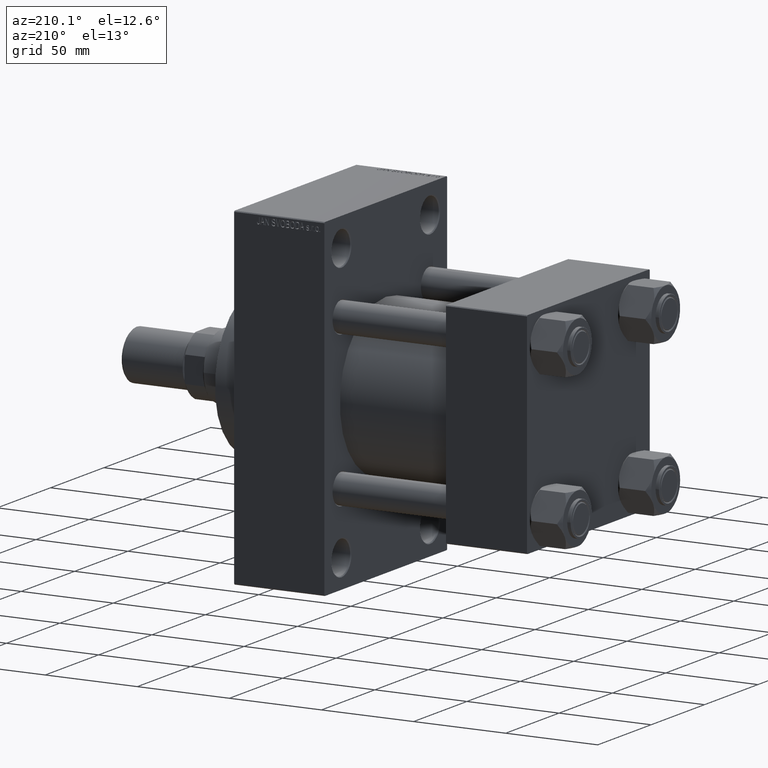
[diagram: clean part render]
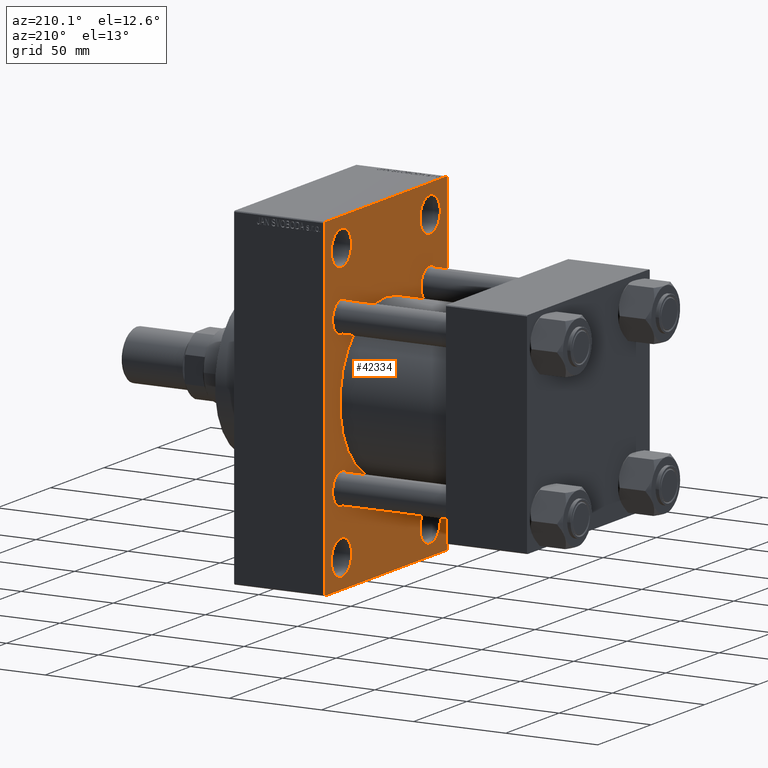
[diagram: same view with one face highlighted and labeled with its STEP entity id]
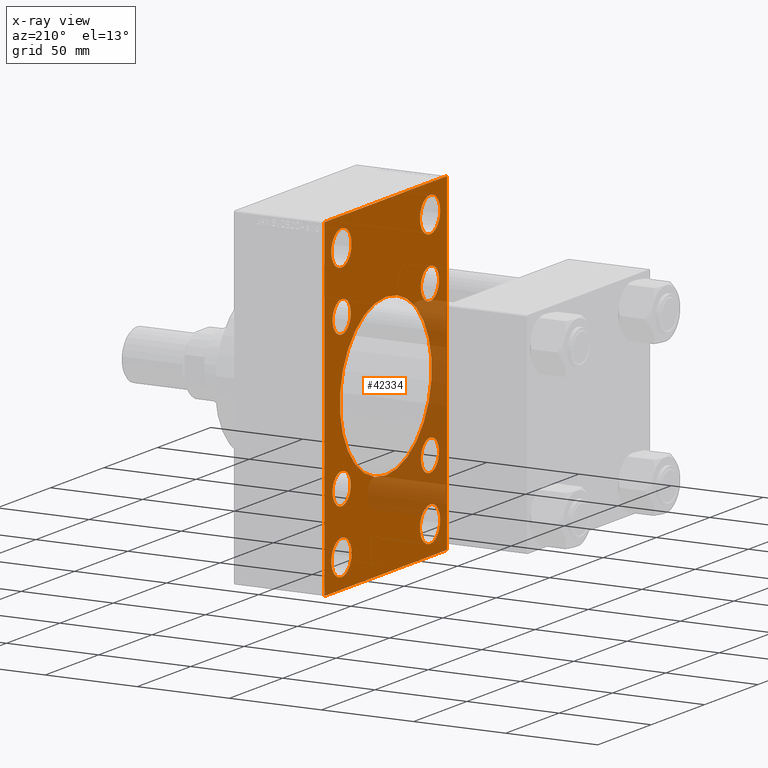
[diagram: x-ray of the same camera — body ghosted, the highlighted face saturated]
A machine part, auxiliary view. The second image highlights one B-rep face of the part: STEP entity #42334.
The next image is the same camera in x-ray: the body ghosted, the highlighted face saturated — about 23% of this face is hidden behind the body in this view.
In plain terms, the highlighted planar face has unit normal (-1, 0, 0).
Its self-contained STEP definition (entity closure, byte-faithful):
#34 = CARTESIAN_POINT ( 'NONE',  ( 110.0000000000000000, -41.34999999999998721, -41.35000000000000853 ) ) ;
#129 = CARTESIAN_POINT ( 'NONE',  ( 110.0000000000000000, 41.34999999999999432, -41.35000000000000142 ) ) ;
#423 = AXIS2_PLACEMENT_3D ( 'NONE', #33011, #48647, #17352 ) ;
#733 = DIRECTION ( 'NONE',  ( 0.000000000000000000, 0.000000000000000000, 1.000000000000000000 ) ) ;
#874 = DIRECTION ( 'NONE',  ( 1.000000000000000000, -0.000000000000000000, 0.000000000000000000 ) ) ;
#1205 = EDGE_CURVE ( 'NONE', #43798, #24422, #12988, .T. ) ;
#1486 = CARTESIAN_POINT ( 'NONE',  ( 110.0000000000000000, -41.49999999999999289, 84.00000000000004263 ) ) ;
#1601 = DIRECTION ( 'NONE',  ( 0.000000000000000000, -0.7071067811865574537, 0.7071067811865376918 ) ) ;
#1838 = LINE ( 'NONE', #39980, #33040 ) ;
#1896 = CARTESIAN_POINT ( 'NONE',  ( 110.0000000000000000, -41.34999999999998721, 41.35000000000000853 ) ) ;
#2089 = CARTESIAN_POINT ( 'NONE',  ( 110.0000000000000000, 41.50000000000000711, 84.00000000000004263 ) ) ;
#2331 = CARTESIAN_POINT ( 'NONE',  ( 110.0000000000000000, -73.49999999999918998, -73.50000000000123634 ) ) ;
#2625 = EDGE_CURVE ( 'NONE', #4343, #25848, #49531, .T. ) ;
#2639 = CARTESIAN_POINT ( 'NONE',  ( 110.0000000000000000, 56.99999999999992895, -90.00000000000000000 ) ) ;
#2646 = VERTEX_POINT ( 'NONE', #1486 ) ;
#3475 = FACE_BOUND ( 'NONE', #30378, .T. ) ;
#3525 = VERTEX_POINT ( 'NONE', #37436 ) ;
#3603 = EDGE_CURVE ( 'NONE', #5671, #2646, #18093, .T. ) ;
#3629 = CARTESIAN_POINT ( 'NONE',  ( 110.0000000000000000, -41.49999999999999289, -64.99999999999994316 ) ) ;
#3730 = FACE_BOUND ( 'NONE', #31744, .T. ) ;
#3836 = ORIENTED_EDGE ( 'NONE', *, *, #21905, .T. ) ;
#3936 = AXIS2_PLACEMENT_3D ( 'NONE', #12135, #19929, #39375 ) ;
#3945 = CARTESIAN_POINT ( 'NONE',  ( 110.0000000000000000, -56.99999999999998579, 89.99999999999997158 ) ) ;
#3979 = DIRECTION ( 'NONE',  ( -1.000000000000000000, 0.000000000000000000, -0.000000000000000000 ) ) ;
#3990 = AXIS2_PLACEMENT_3D ( 'NONE', #1896, #36736, #13759 ) ;
#4142 = VECTOR ( 'NONE', #1601, 999.9999999999998863 ) ;
#4220 = CARTESIAN_POINT ( 'NONE',  ( 110.0000000000000000, 57.49999999999997158, 89.99999999999998579 ) ) ;
#4312 = VERTEX_POINT ( 'NONE', #34062 ) ;
#4343 = VERTEX_POINT ( 'NONE', #43140 ) ;
#4378 = EDGE_CURVE ( 'NONE', #40532, #11284, #31747, .T. ) ;
#4513 = DIRECTION ( 'NONE',  ( 0.000000000000000000, 0.000000000000000000, 1.000000000000000000 ) ) ;
#4947 = EDGE_CURVE ( 'NONE', #11284, #40532, #46256, .T. ) ;
#5276 = DIRECTION ( 'NONE',  ( 0.000000000000000000, 0.000000000000000000, 1.000000000000000000 ) ) ;
#5363 = CARTESIAN_POINT ( 'NONE',  ( 110.0000000000000000, -2.602085213965210642E-15, 0.000000000000000000 ) ) ;
#5411 = CARTESIAN_POINT ( 'NONE',  ( 110.0000000000000000, -41.34999999999998721, 49.85000000000002274 ) ) ;
#5575 = DIRECTION ( 'NONE',  ( -0.000000000000000000, -0.7071067811865574537, -0.7071067811865376918 ) ) ;
#5671 = VERTEX_POINT ( 'NONE', #42844 ) ;
#5790 = ORIENTED_EDGE ( 'NONE', *, *, #19178, .T. ) ;
#5880 = ORIENTED_EDGE ( 'NONE', *, *, #48939, .F. ) ;
#6364 = AXIS2_PLACEMENT_3D ( 'NONE', #21618, #33248, #14057 ) ;
#6948 = DIRECTION ( 'NONE',  ( 1.000000000000000000, -0.000000000000000000, 0.000000000000000000 ) ) ;
#7364 = DIRECTION ( 'NONE',  ( 0.000000000000000000, 0.000000000000000000, 1.000000000000000000 ) ) ;
#7527 = FACE_BOUND ( 'NONE', #48126, .T. ) ;
#7611 = CARTESIAN_POINT ( 'NONE',  ( 110.0000000000000000, 41.34999999999999432, 32.84999999999999432 ) ) ;
#7752 = LINE ( 'NONE', #49890, #18466 ) ;
#8065 = VECTOR ( 'NONE', #38306, 1000.000000000000000 ) ;
#8133 = LINE ( 'NONE', #39670, #12559 ) ;
#8163 = EDGE_CURVE ( 'NONE', #16612, #28310, #8133, .T. ) ;
#8166 = VERTEX_POINT ( 'NONE', #16438 ) ;
#8310 = CARTESIAN_POINT ( 'NONE',  ( 110.0000000000000000, 57.49999999999997158, 89.49999999999995737 ) ) ;
#8538 = CARTESIAN_POINT ( 'NONE',  ( 110.0000000000000000, 41.50000000000000711, 74.50000000000001421 ) ) ;
#8719 = ORIENTED_EDGE ( 'NONE', *, *, #25088, .T. ) ;
#8982 = VERTEX_POINT ( 'NONE', #17968 ) ;
#9138 = CARTESIAN_POINT ( 'NONE',  ( 110.0000000000000000, 73.49999999999916156, -73.50000000000122213 ) ) ;
#9165 = DIRECTION ( 'NONE',  ( 0.000000000000000000, 0.000000000000000000, -1.000000000000000000 ) ) ;
#9634 = CIRCLE ( 'NONE', #6364, 9.500000000000035527 ) ;
#9802 = VECTOR ( 'NONE', #5575, 999.9999999999998863 ) ;
#10323 = ORIENTED_EDGE ( 'NONE', *, *, #18256, .T. ) ;
#11173 = DIRECTION ( 'NONE',  ( 1.000000000000000000, -0.000000000000000000, 0.000000000000000000 ) ) ;
#11212 = LINE ( 'NONE', #26582, #17416 ) ;
#11284 = VERTEX_POINT ( 'NONE', #26447 ) ;
#11759 = ORIENTED_EDGE ( 'NONE', *, *, #23115, .T. ) ;
#11791 = VERTEX_POINT ( 'NONE', #25032 ) ;
#12135 = CARTESIAN_POINT ( 'NONE',  ( 110.0000000000000000, -41.49999999999999289, 74.50000000000001421 ) ) ;
#12559 = VECTOR ( 'NONE', #27300, 1000.000000000000000 ) ;
#12837 = CARTESIAN_POINT ( 'NONE',  ( 110.0000000000000000, -56.99999999999996447, -90.00000000000001421 ) ) ;
#12988 = LINE ( 'NONE', #2331, #4142 ) ;
#13208 = ORIENTED_EDGE ( 'NONE', *, *, #34898, .T. ) ;
#13220 = DIRECTION ( 'NONE',  ( 0.000000000000000000, -1.000000000000000000, -1.206764157201257045E-16 ) ) ;
#13759 = DIRECTION ( 'NONE',  ( 0.000000000000000000, 0.000000000000000000, 1.000000000000000000 ) ) ;
#14057 = DIRECTION ( 'NONE',  ( 0.000000000000000000, 0.000000000000000000, 1.000000000000000000 ) ) ;
#14404 = CIRCLE ( 'NONE', #3936, 9.500000000000035527 ) ;
#14676 = ORIENTED_EDGE ( 'NONE', *, *, #2625, .T. ) ;
#15093 = FACE_BOUND ( 'NONE', #31951, .T. ) ;
#15379 = DIRECTION ( 'NONE',  ( 1.000000000000000000, -0.000000000000000000, 0.000000000000000000 ) ) ;
#15416 = EDGE_CURVE ( 'NONE', #25526, #43669, #16021, .T. ) ;
#15433 = CIRCLE ( 'NONE', #33154, 43.00000000000000000 ) ;
#15478 = DIRECTION ( 'NONE',  ( 0.000000000000000000, 0.000000000000000000, 1.000000000000000000 ) ) ;
#15604 = DIRECTION ( 'NONE',  ( -0.000000000000000000, 0.000000000000000000, 1.000000000000000000 ) ) ;
#16021 = CIRCLE ( 'NONE', #28909, 9.500000000000035527 ) ;
#16371 = CARTESIAN_POINT ( 'NONE',  ( 110.0000000000000000, -41.34999999999998721, -41.35000000000000853 ) ) ;
#16438 = CARTESIAN_POINT ( 'NONE',  ( 110.0000000000000000, 57.49999999999997868, -89.49999999999990052 ) ) ;
#16574 = EDGE_LOOP ( 'NONE', ( #10323, #45467 ) ) ;
#16612 = VERTEX_POINT ( 'NONE', #29131 ) ;
#16775 = EDGE_CURVE ( 'NONE', #49536, #3525, #31273, .T. ) ;
#17187 = VERTEX_POINT ( 'NONE', #41362 ) ;
#17201 = AXIS2_PLACEMENT_3D ( 'NONE', #30487, #3979, #15604 ) ;
#17282 = VERTEX_POINT ( 'NONE', #28947 ) ;
#17352 = DIRECTION ( 'NONE',  ( 0.000000000000000000, 0.000000000000000000, 1.000000000000000000 ) ) ;
#17416 = VECTOR ( 'NONE', #20014, 1000.000000000000000 ) ;
#17603 = ORIENTED_EDGE ( 'NONE', *, *, #33952, .T. ) ;
#17756 = AXIS2_PLACEMENT_3D ( 'NONE', #129, #6948, #46591 ) ;
#17790 = VERTEX_POINT ( 'NONE', #7611 ) ;
#17818 = ORIENTED_EDGE ( 'NONE', *, *, #1205, .T. ) ;
#17968 = CARTESIAN_POINT ( 'NONE',  ( 110.0000000000000000, 41.34999999999999432, 49.85000000000001563 ) ) ;
#18093 = CIRCLE ( 'NONE', #24570, 9.500000000000035527 ) ;
#18256 = EDGE_CURVE ( 'NONE', #8982, #17790, #19211, .T. ) ;
#18466 = VECTOR ( 'NONE', #34508, 1000.000000000000114 ) ;
#18601 = LINE ( 'NONE', #4220, #8065 ) ;
#18714 = DIRECTION ( 'NONE',  ( 1.000000000000000000, 0.000000000000000000, 0.000000000000000000 ) ) ;
#18814 = EDGE_LOOP ( 'NONE', ( #42331, #17818, #5880, #32218, #30313, #26403, #3836, #17603 ) ) ;
#19178 = EDGE_CURVE ( 'NONE', #2646, #5671, #14404, .T. ) ;
#19211 = CIRCLE ( 'NONE', #31347, 8.500000000000007105 ) ;
#19638 = VERTEX_POINT ( 'NONE', #2639 ) ;
#19776 = AXIS2_PLACEMENT_3D ( 'NONE', #41574, #26160, #49403 ) ;
#19929 = DIRECTION ( 'NONE',  ( 1.000000000000000000, -0.000000000000000000, 0.000000000000000000 ) ) ;
#20014 = DIRECTION ( 'NONE',  ( 0.000000000000000000, 0.000000000000000000, -1.000000000000000000 ) ) ;
#20247 = CIRCLE ( 'NONE', #35607, 8.500000000000007105 ) ;
#20756 = DIRECTION ( 'NONE',  ( 1.000000000000000000, 0.000000000000000000, 0.000000000000000000 ) ) ;
#21058 = ORIENTED_EDGE ( 'NONE', *, *, #23062, .T. ) ;
#21618 = CARTESIAN_POINT ( 'NONE',  ( 110.0000000000000000, 41.50000000000000711, -74.50000000000000000 ) ) ;
#21905 = EDGE_CURVE ( 'NONE', #29285, #8166, #18601, .T. ) ;
#22052 = LINE ( 'NONE', #49579, #49935 ) ;
#22552 = DIRECTION ( 'NONE',  ( 0.000000000000000000, 0.000000000000000000, 1.000000000000000000 ) ) ;
#22914 = PLANE ( 'NONE',  #17201 ) ;
#23007 = CARTESIAN_POINT ( 'NONE',  ( 110.0000000000000000, -2.602085213965210642E-15, 0.000000000000000000 ) ) ;
#23062 = EDGE_CURVE ( 'NONE', #17187, #17282, #39557, .T. ) ;
#23115 = EDGE_CURVE ( 'NONE', #46281, #40821, #24225, .T. ) ;
#23250 = EDGE_LOOP ( 'NONE', ( #35110, #30033 ) ) ;
#23314 = CARTESIAN_POINT ( 'NONE',  ( 110.0000000000000000, -41.49999999999999289, 74.50000000000001421 ) ) ;
#23416 = DIRECTION ( 'NONE',  ( 1.000000000000000000, -0.000000000000000000, 0.000000000000000000 ) ) ;
#24225 = CIRCLE ( 'NONE', #46833, 9.500000000000035527 ) ;
#24361 = AXIS2_PLACEMENT_3D ( 'NONE', #47078, #874, #27891 ) ;
#24422 = VERTEX_POINT ( 'NONE', #34695 ) ;
#24570 = AXIS2_PLACEMENT_3D ( 'NONE', #23314, #46041, #22552 ) ;
#24781 = EDGE_CURVE ( 'NONE', #3525, #49536, #15433, .T. ) ;
#25032 = CARTESIAN_POINT ( 'NONE',  ( 110.0000000000000000, -41.34999999999998721, 32.85000000000000142 ) ) ;
#25088 = EDGE_CURVE ( 'NONE', #38837, #11791, #46873, .T. ) ;
#25123 = CARTESIAN_POINT ( 'NONE',  ( 110.0000000000000000, -41.34999999999998721, 41.35000000000000853 ) ) ;
#25526 = VERTEX_POINT ( 'NONE', #2089 ) ;
#25728 = CARTESIAN_POINT ( 'NONE',  ( 110.0000000000000000, 41.50000000000000711, -84.00000000000002842 ) ) ;
#25848 = VERTEX_POINT ( 'NONE', #25728 ) ;
#25899 = AXIS2_PLACEMENT_3D ( 'NONE', #25123, #31977, #39548 ) ;
#26160 = DIRECTION ( 'NONE',  ( 1.000000000000000000, -0.000000000000000000, 0.000000000000000000 ) ) ;
#26190 = FACE_OUTER_BOUND ( 'NONE', #18814, .T. ) ;
#26348 = DIRECTION ( 'NONE',  ( 0.000000000000000000, -1.000000000000000000, -1.206764157201257291E-16 ) ) ;
#26403 = ORIENTED_EDGE ( 'NONE', *, *, #28232, .T. ) ;
#26447 = CARTESIAN_POINT ( 'NONE',  ( 110.0000000000000000, -41.34999999999998721, -32.85000000000000142 ) ) ;
#26582 = CARTESIAN_POINT ( 'NONE',  ( 110.0000000000000000, -57.50000000000002132, 89.99999999999997158 ) ) ;
#26702 = FACE_BOUND ( 'NONE', #23250, .T. ) ;
#27300 = DIRECTION ( 'NONE',  ( -0.000000000000000000, 0.7071067811865524577, 0.7071067811865426878 ) ) ;
#27735 = DIRECTION ( 'NONE',  ( 0.000000000000000000, 0.000000000000000000, -1.000000000000000000 ) ) ;
#27778 = AXIS2_PLACEMENT_3D ( 'NONE', #28985, #40364, #5276 ) ;
#27891 = DIRECTION ( 'NONE',  ( 0.000000000000000000, 0.000000000000000000, 1.000000000000000000 ) ) ;
#27959 = DIRECTION ( 'NONE',  ( 0.000000000000000000, 0.000000000000000000, 1.000000000000000000 ) ) ;
#27968 = CARTESIAN_POINT ( 'NONE',  ( 110.0000000000000000, 41.50000000000000711, 64.99999999999997158 ) ) ;
#28178 = EDGE_CURVE ( 'NONE', #25848, #4343, #9634, .T. ) ;
#28232 = EDGE_CURVE ( 'NONE', #4312, #29285, #7752, .T. ) ;
#28310 = VERTEX_POINT ( 'NONE', #3945 ) ;
#28387 = ORIENTED_EDGE ( 'NONE', *, *, #46912, .T. ) ;
#28909 = AXIS2_PLACEMENT_3D ( 'NONE', #8538, #23416, #27959 ) ;
#28943 = EDGE_LOOP ( 'NONE', ( #5790, #39535 ) ) ;
#28947 = CARTESIAN_POINT ( 'NONE',  ( 110.0000000000000000, 41.34999999999999432, -32.84999999999999432 ) ) ;
#28985 = CARTESIAN_POINT ( 'NONE',  ( 110.0000000000000000, 41.50000000000000711, -74.50000000000000000 ) ) ;
#29011 = ORIENTED_EDGE ( 'NONE', *, *, #28178, .T. ) ;
#29131 = CARTESIAN_POINT ( 'NONE',  ( 110.0000000000000000, -57.50000000000002132, 89.49999999999994316 ) ) ;
#29285 = VERTEX_POINT ( 'NONE', #8310 ) ;
#29722 = EDGE_CURVE ( 'NONE', #11791, #38837, #44312, .T. ) ;
#29841 = EDGE_CURVE ( 'NONE', #4312, #28310, #22052, .T. ) ;
#29938 = CARTESIAN_POINT ( 'NONE',  ( 110.0000000000000000, 2.663896022368408223E-15, -43.00000000000000000 ) ) ;
#30033 = ORIENTED_EDGE ( 'NONE', *, *, #16775, .T. ) ;
#30102 = EDGE_CURVE ( 'NONE', #19638, #43798, #1838, .T. ) ;
#30313 = ORIENTED_EDGE ( 'NONE', *, *, #29841, .F. ) ;
#30378 = EDGE_LOOP ( 'NONE', ( #14676, #29011 ) ) ;
#30487 = CARTESIAN_POINT ( 'NONE',  ( 110.0000000000000000, 0.000000000000000000, 0.000000000000000000 ) ) ;
#31273 = CIRCLE ( 'NONE', #37692, 43.00000000000000000 ) ;
#31347 = AXIS2_PLACEMENT_3D ( 'NONE', #49958, #15379, #733 ) ;
#31405 = EDGE_LOOP ( 'NONE', ( #41352, #48303 ) ) ;
#31744 = EDGE_LOOP ( 'NONE', ( #34878, #40147 ) ) ;
#31747 = CIRCLE ( 'NONE', #48654, 8.500000000000007105 ) ;
#31951 = EDGE_LOOP ( 'NONE', ( #28387, #21058 ) ) ;
#31977 = DIRECTION ( 'NONE',  ( 1.000000000000000000, -0.000000000000000000, 0.000000000000000000 ) ) ;
#32218 = ORIENTED_EDGE ( 'NONE', *, *, #8163, .T. ) ;
#32440 = EDGE_LOOP ( 'NONE', ( #8719, #47302 ) ) ;
#33011 = CARTESIAN_POINT ( 'NONE',  ( 110.0000000000000000, 41.34999999999999432, -41.35000000000000142 ) ) ;
#33040 = VECTOR ( 'NONE', #13220, 1000.000000000000000 ) ;
#33154 = AXIS2_PLACEMENT_3D ( 'NONE', #23007, #18714, #27735 ) ;
#33248 = DIRECTION ( 'NONE',  ( 1.000000000000000000, -0.000000000000000000, 0.000000000000000000 ) ) ;
#33783 = FACE_BOUND ( 'NONE', #31405, .T. ) ;
#33952 = EDGE_CURVE ( 'NONE', #8166, #19638, #43469, .T. ) ;
#34062 = CARTESIAN_POINT ( 'NONE',  ( 110.0000000000000000, 56.99999999999994316, 89.99999999999998579 ) ) ;
#34508 = DIRECTION ( 'NONE',  ( 0.000000000000000000, 0.7071067811865474617, -0.7071067811865474617 ) ) ;
#34695 = CARTESIAN_POINT ( 'NONE',  ( 110.0000000000000000, -57.50000000000002132, -89.49999999999991473 ) ) ;
#34878 = ORIENTED_EDGE ( 'NONE', *, *, #4947, .T. ) ;
#34898 = EDGE_CURVE ( 'NONE', #40821, #46281, #44497, .T. ) ;
#34922 = CARTESIAN_POINT ( 'NONE',  ( 110.0000000000000000, 41.34999999999999432, 41.35000000000000142 ) ) ;
#35110 = ORIENTED_EDGE ( 'NONE', *, *, #24781, .T. ) ;
#35607 = AXIS2_PLACEMENT_3D ( 'NONE', #34922, #42746, #15478 ) ;
#35724 = DIRECTION ( 'NONE',  ( 1.000000000000000000, -0.000000000000000000, 0.000000000000000000 ) ) ;
#36331 = EDGE_CURVE ( 'NONE', #17790, #8982, #20247, .T. ) ;
#36736 = DIRECTION ( 'NONE',  ( 1.000000000000000000, -0.000000000000000000, 0.000000000000000000 ) ) ;
#37436 = CARTESIAN_POINT ( 'NONE',  ( 110.0000000000000000, -2.602085213965210642E-15, 43.00000000000000000 ) ) ;
#37692 = AXIS2_PLACEMENT_3D ( 'NONE', #5363, #20756, #9165 ) ;
#38306 = DIRECTION ( 'NONE',  ( 0.000000000000000000, 3.854941057726238467E-17, -1.000000000000000000 ) ) ;
#38837 = VERTEX_POINT ( 'NONE', #5411 ) ;
#39106 = DIRECTION ( 'NONE',  ( 1.000000000000000000, -0.000000000000000000, 0.000000000000000000 ) ) ;
#39375 = DIRECTION ( 'NONE',  ( 0.000000000000000000, 0.000000000000000000, 1.000000000000000000 ) ) ;
#39535 = ORIENTED_EDGE ( 'NONE', *, *, #3603, .T. ) ;
#39548 = DIRECTION ( 'NONE',  ( 0.000000000000000000, 0.000000000000000000, 1.000000000000000000 ) ) ;
#39557 = CIRCLE ( 'NONE', #17756, 8.500000000000007105 ) ;
#39670 = CARTESIAN_POINT ( 'NONE',  ( 110.0000000000000000, -73.49999999999957367, 73.50000000000059686 ) ) ;
#39812 = AXIS2_PLACEMENT_3D ( 'NONE', #34, #11173, #7364 ) ;
#39980 = CARTESIAN_POINT ( 'NONE',  ( 110.0000000000000000, 57.49999999999997868, -90.00000000000000000 ) ) ;
#40147 = ORIENTED_EDGE ( 'NONE', *, *, #4378, .T. ) ;
#40364 = DIRECTION ( 'NONE',  ( 1.000000000000000000, -0.000000000000000000, 0.000000000000000000 ) ) ;
#40532 = VERTEX_POINT ( 'NONE', #49156 ) ;
#40821 = VERTEX_POINT ( 'NONE', #45761 ) ;
#41352 = ORIENTED_EDGE ( 'NONE', *, *, #15416, .T. ) ;
#41362 = CARTESIAN_POINT ( 'NONE',  ( 110.0000000000000000, 41.34999999999999432, -49.85000000000001563 ) ) ;
#41574 = CARTESIAN_POINT ( 'NONE',  ( 110.0000000000000000, 41.50000000000000711, 74.50000000000001421 ) ) ;
#42331 = ORIENTED_EDGE ( 'NONE', *, *, #30102, .T. ) ;
#42334 = ADVANCED_FACE ( 'NONE', ( #44152, #7527, #3475, #33783, #45139, #49173, #15093, #3730, #26702, #26190 ), #22914, .T. ) ;
#42746 = DIRECTION ( 'NONE',  ( 1.000000000000000000, -0.000000000000000000, 0.000000000000000000 ) ) ;
#42844 = CARTESIAN_POINT ( 'NONE',  ( 110.0000000000000000, -41.49999999999999289, 64.99999999999997158 ) ) ;
#43140 = CARTESIAN_POINT ( 'NONE',  ( 110.0000000000000000, 41.50000000000000711, -64.99999999999995737 ) ) ;
#43469 = LINE ( 'NONE', #9138, #9802 ) ;
#43669 = VERTEX_POINT ( 'NONE', #27968 ) ;
#43798 = VERTEX_POINT ( 'NONE', #12837 ) ;
#43989 = CIRCLE ( 'NONE', #423, 8.500000000000007105 ) ;
#44152 = FACE_BOUND ( 'NONE', #28943, .T. ) ;
#44312 = CIRCLE ( 'NONE', #3990, 8.500000000000007105 ) ;
#44497 = CIRCLE ( 'NONE', #24361, 9.500000000000035527 ) ;
#45139 = FACE_BOUND ( 'NONE', #32440, .T. ) ;
#45467 = ORIENTED_EDGE ( 'NONE', *, *, #36331, .T. ) ;
#45761 = CARTESIAN_POINT ( 'NONE',  ( 110.0000000000000000, -41.49999999999999289, -84.00000000000001421 ) ) ;
#46041 = DIRECTION ( 'NONE',  ( 1.000000000000000000, -0.000000000000000000, 0.000000000000000000 ) ) ;
#46256 = CIRCLE ( 'NONE', #39812, 8.500000000000007105 ) ;
#46281 = VERTEX_POINT ( 'NONE', #3629 ) ;
#46591 = DIRECTION ( 'NONE',  ( 0.000000000000000000, 0.000000000000000000, 1.000000000000000000 ) ) ;
#46833 = AXIS2_PLACEMENT_3D ( 'NONE', #47085, #35724, #47332 ) ;
#46873 = CIRCLE ( 'NONE', #25899, 8.500000000000007105 ) ;
#46912 = EDGE_CURVE ( 'NONE', #17282, #17187, #43989, .T. ) ;
#47059 = EDGE_CURVE ( 'NONE', #43669, #25526, #47987, .T. ) ;
#47078 = CARTESIAN_POINT ( 'NONE',  ( 110.0000000000000000, -41.49999999999999289, -74.49999999999998579 ) ) ;
#47085 = CARTESIAN_POINT ( 'NONE',  ( 110.0000000000000000, -41.49999999999999289, -74.49999999999998579 ) ) ;
#47302 = ORIENTED_EDGE ( 'NONE', *, *, #29722, .T. ) ;
#47332 = DIRECTION ( 'NONE',  ( 0.000000000000000000, 0.000000000000000000, 1.000000000000000000 ) ) ;
#47987 = CIRCLE ( 'NONE', #19776, 9.500000000000035527 ) ;
#48126 = EDGE_LOOP ( 'NONE', ( #11759, #13208 ) ) ;
#48303 = ORIENTED_EDGE ( 'NONE', *, *, #47059, .T. ) ;
#48647 = DIRECTION ( 'NONE',  ( 1.000000000000000000, -0.000000000000000000, 0.000000000000000000 ) ) ;
#48654 = AXIS2_PLACEMENT_3D ( 'NONE', #16371, #39106, #4513 ) ;
#48939 = EDGE_CURVE ( 'NONE', #16612, #24422, #11212, .T. ) ;
#49156 = CARTESIAN_POINT ( 'NONE',  ( 110.0000000000000000, -41.34999999999998721, -49.85000000000002274 ) ) ;
#49173 = FACE_BOUND ( 'NONE', #16574, .T. ) ;
#49403 = DIRECTION ( 'NONE',  ( 0.000000000000000000, 0.000000000000000000, 1.000000000000000000 ) ) ;
#49531 = CIRCLE ( 'NONE', #27778, 9.500000000000035527 ) ;
#49536 = VERTEX_POINT ( 'NONE', #29938 ) ;
#49579 = CARTESIAN_POINT ( 'NONE',  ( 110.0000000000000000, 57.49999999999997158, 89.99999999999998579 ) ) ;
#49890 = CARTESIAN_POINT ( 'NONE',  ( 110.0000000000000000, 73.49999999999995737, 73.49999999999995737 ) ) ;
#49935 = VECTOR ( 'NONE', #26348, 1000.000000000000000 ) ;
#49958 = CARTESIAN_POINT ( 'NONE',  ( 110.0000000000000000, 41.34999999999999432, 41.35000000000000142 ) ) ;